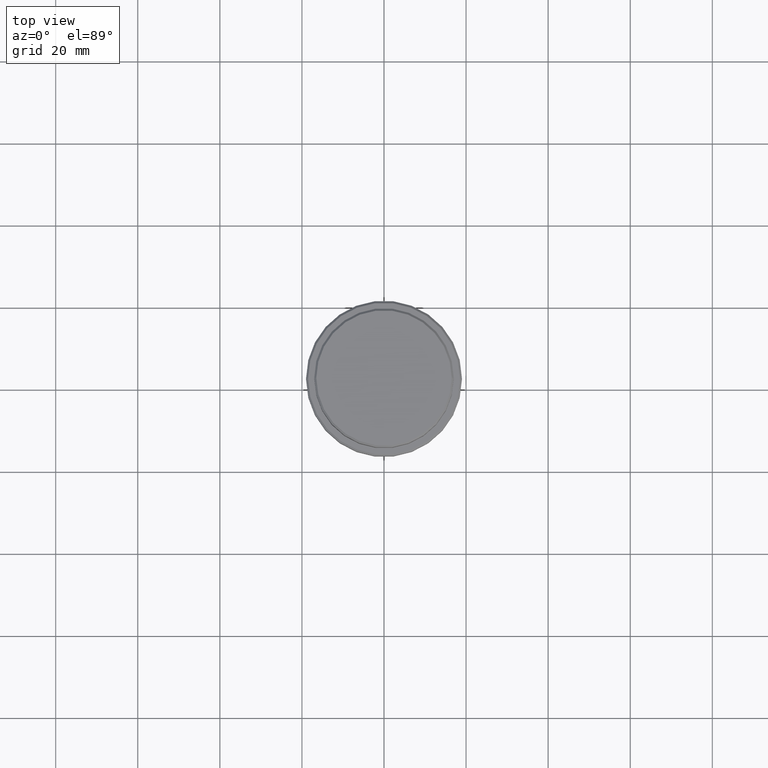
[diagram: clean part render]
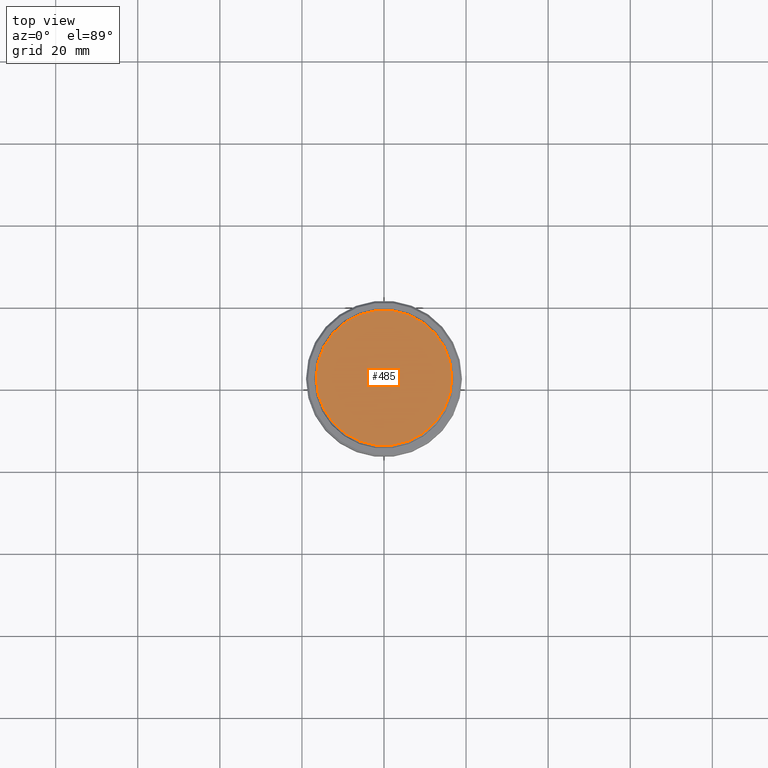
[diagram: same view with one face highlighted and labeled with its STEP entity id]
A machine part, top view. The second image highlights one B-rep face of the part: STEP entity #485.
In plain terms, the highlighted planar face has unit normal (0, -0, 1).
Its self-contained STEP definition (entity closure, byte-faithful):
#2 = CARTESIAN_POINT ( 'NONE',  ( 0.000000000000000000, 0.000000000000000000, 0.000000000000000000 ) ) ;
#30 = ORIENTED_EDGE ( 'NONE', *, *, #269, .T. ) ;
#119 = CARTESIAN_POINT ( 'NONE',  ( 0.000000000000000000, 0.000000000000000000, 0.000000000000000000 ) ) ;
#269 = EDGE_CURVE ( 'NONE', #1253, #983, #380, .T. ) ;
#318 = DIRECTION ( 'NONE',  ( 1.000000000000000000, 0.000000000000000000, 0.000000000000000000 ) ) ;
#350 = ORIENTED_EDGE ( 'NONE', *, *, #1052, .T. ) ;
#380 = CIRCLE ( 'NONE', #1361, 16.49999999999998579 ) ;
#384 = AXIS2_PLACEMENT_3D ( 'NONE', #119, #777, #877 ) ;
#395 = CARTESIAN_POINT ( 'NONE',  ( -16.49999999999998579, 0.000000000000000000, 0.000000000000000000 ) ) ;
#397 = FACE_OUTER_BOUND ( 'NONE', #630, .T. ) ;
#485 = ADVANCED_FACE ( 'NONE', ( #397 ), #1379, .T. ) ;
#619 = DIRECTION ( 'NONE',  ( 0.000000000000000000, -0.000000000000000000, 1.000000000000000000 ) ) ;
#630 = EDGE_LOOP ( 'NONE', ( #350, #30 ) ) ;
#777 = DIRECTION ( 'NONE',  ( -0.000000000000000000, -0.000000000000000000, 1.000000000000000000 ) ) ;
#817 = CIRCLE ( 'NONE', #384, 16.49999999999998579 ) ;
#848 = DIRECTION ( 'NONE',  ( 1.000000000000000000, 0.000000000000000000, 0.000000000000000000 ) ) ;
#877 = DIRECTION ( 'NONE',  ( 1.000000000000000000, 0.000000000000000000, 0.000000000000000000 ) ) ;
#963 = DIRECTION ( 'NONE',  ( -0.000000000000000000, -0.000000000000000000, 1.000000000000000000 ) ) ;
#983 = VERTEX_POINT ( 'NONE', #395 ) ;
#1052 = EDGE_CURVE ( 'NONE', #983, #1253, #817, .T. ) ;
#1175 = AXIS2_PLACEMENT_3D ( 'NONE', #1373, #619, #848 ) ;
#1229 = CARTESIAN_POINT ( 'NONE',  ( 16.49999999999998579, 2.051283388571815309E-15, 0.000000000000000000 ) ) ;
#1253 = VERTEX_POINT ( 'NONE', #1229 ) ;
#1361 = AXIS2_PLACEMENT_3D ( 'NONE', #2, #963, #318 ) ;
#1373 = CARTESIAN_POINT ( 'NONE',  ( 0.000000000000000000, 0.000000000000000000, 0.000000000000000000 ) ) ;
#1379 = PLANE ( 'NONE',  #1175 ) ;